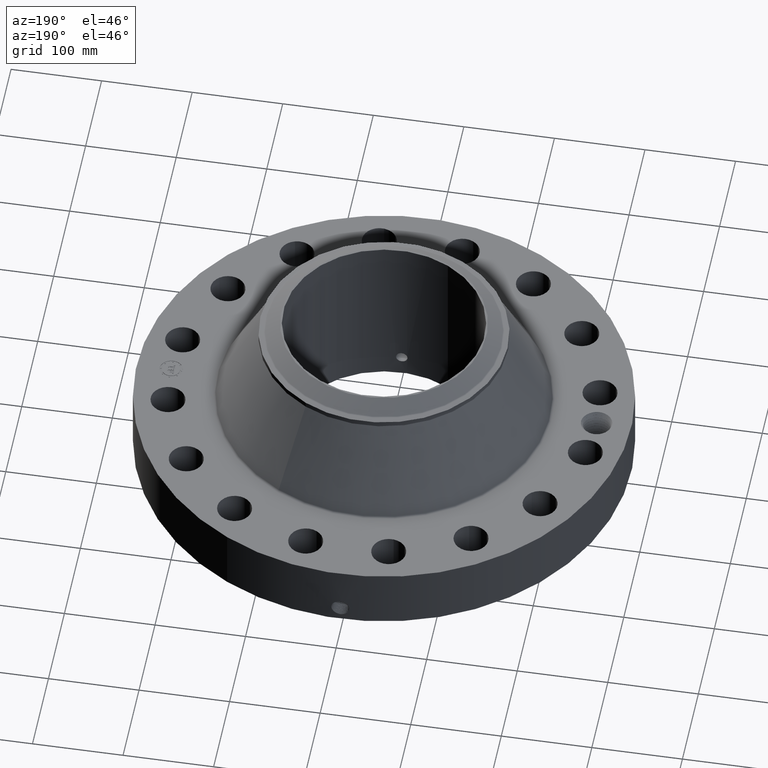
[diagram: clean part render]
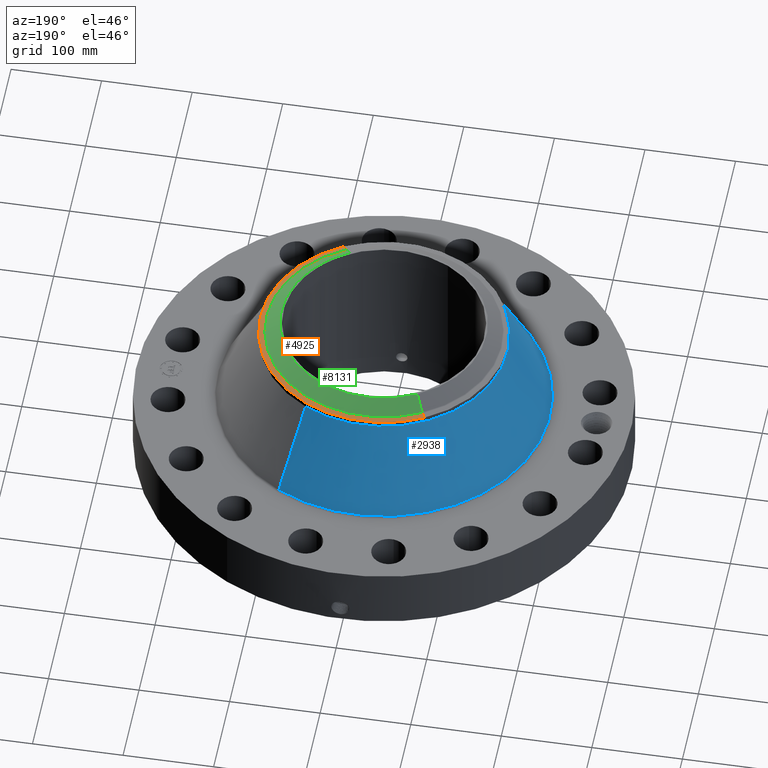
[diagram: same view with three faces highlighted in distinct colors, each labeled with its STEP entity id]
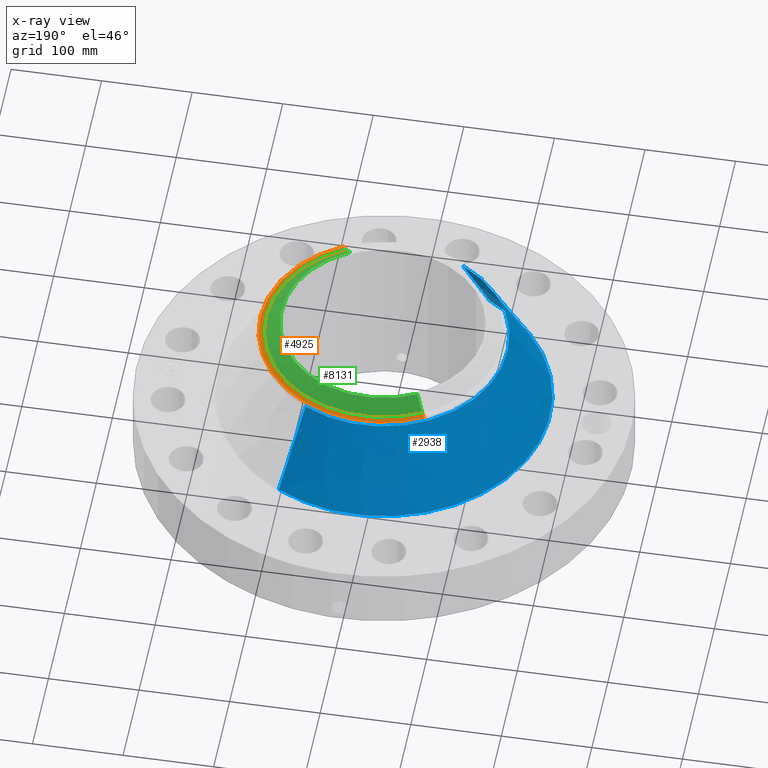
[diagram: x-ray of the same camera — body ghosted, the three highlighted faces saturated]
A machine part, auxiliary view with three faces highlighted in distinct colors.
The next image is the same camera in x-ray (body ghosted, the three faces saturated) — at least one of them is partly hidden behind the body in this view.
Their STEP definitions:

[orange] entity #4925 — the highlighted conical surface has half-angle 80 deg.
#3725=AXIS2_PLACEMENT_3D('Circle Axis2P3D',#3723,#3724,$) ;
#3752=AXIS2_PLACEMENT_3D('Circle Axis2P3D',#3750,#3751,$) ;
#4897=AXIS2_PLACEMENT_3D('Cone Axis2P3D',#4894,#4895,#4896) ;
#4908=AXIS2_PLACEMENT_3D('Circle Axis2P3D',#4906,#4907,$) ;
#3720=CARTESIAN_POINT('Vertex',(2.57691227001,4.71700627018,6.94200584758)) ;
#3723=CARTESIAN_POINT('Axis2P3D Location',(0.,0.,6.94200584758)) ;
#3727=CARTESIAN_POINT('Vertex',(2.57691227001,-4.71700627018,6.94200584758)) ;
#3747=CARTESIAN_POINT('Vertex',(-2.57691227001,4.71700627018,6.94200584758)) ;
#3750=CARTESIAN_POINT('Axis2P3D Location',(0.,0.,6.94200584758)) ;
#4894=CARTESIAN_POINT('Axis2P3D Location',(0.,0.,6.98141601925)) ;
#4899=CARTESIAN_POINT('Line Origine',(-2.52333498223,4.61893370274,6.96171093341)) ;
#4903=CARTESIAN_POINT('Vertex',(-2.46975769445,4.52086113529,6.98141601925)) ;
#4906=CARTESIAN_POINT('Axis2P3D Location',(0.,0.,6.98141601925)) ;
#4910=CARTESIAN_POINT('Vertex',(2.46975769445,-4.52086113529,6.98141601925)) ;
#4913=CARTESIAN_POINT('Line Origine',(2.52333498223,-4.61893370274,6.96171093341)) ;
#3724=DIRECTION('Axis2P3D Direction',(0.,0.,-0.0393700787402)) ;
#3751=DIRECTION('Axis2P3D Direction',(0.,0.,-0.0393700787402)) ;
#4895=DIRECTION('Axis2P3D Direction',(-0.,-0.,-0.0393700787402)) ;
#4896=DIRECTION('Axis2P3D XDirection',(0.0188750212049,-0.0345504945626,0.)) ;
#4900=DIRECTION('Vector Direction',(-0.0185882672208,0.0340255949157,-0.00683654242783)) ;
#4907=DIRECTION('Axis2P3D Direction',(0.,0.,-0.0393700787402)) ;
#4914=DIRECTION('Vector Direction',(0.0185882672208,-0.0340255949157,-0.00683654242783)) ;
#4901=VECTOR('Line Direction',#4900,0.0393700787402) ;
#4915=VECTOR('Line Direction',#4914,0.0393700787402) ;
#4919=ORIENTED_EDGE('',*,*,#4905,.F.) ;
#4920=ORIENTED_EDGE('',*,*,#4912,.F.) ;
#4921=ORIENTED_EDGE('',*,*,#4917,.T.) ;
#4922=ORIENTED_EDGE('',*,*,#3729,.T.) ;
#4923=ORIENTED_EDGE('',*,*,#3754,.F.) ;
#4925=ADVANCED_FACE('PartBody',(#4924),#4898,.T.) ;
#3726=CIRCLE('generated circle',#3725,5.37500000002) ;
#3753=CIRCLE('generated circle',#3752,5.37500000002) ;
#4909=CIRCLE('generated circle',#4908,5.15149380994) ;
#4898=CONICAL_SURFACE('Cone',#4897,5.15149380994,1.3962634016) ;
#3729=EDGE_CURVE('',#3728,#3721,#3726,.F.) ;
#3754=EDGE_CURVE('',#3748,#3721,#3753,.T.) ;
#4905=EDGE_CURVE('',#4904,#3748,#4902,.T.) ;
#4912=EDGE_CURVE('',#4911,#4904,#4909,.F.) ;
#4917=EDGE_CURVE('',#4911,#3728,#4916,.T.) ;
#4918=EDGE_LOOP('',(#4919,#4920,#4921,#4922,#4923)) ;
#4924=FACE_OUTER_BOUND('',#4918,.T.) ;
#4902=LINE('Line',#4899,#4901) ;
#4916=LINE('Line',#4913,#4915) ;
#3721=VERTEX_POINT('',#3720) ;
#3728=VERTEX_POINT('',#3727) ;
#3748=VERTEX_POINT('',#3747) ;
#4904=VERTEX_POINT('',#4903) ;
#4911=VERTEX_POINT('',#4910) ;

[blue] entity #2938 — the highlighted conical surface has half-angle 26.838 deg.
#2291=AXIS2_PLACEMENT_3D('Circle Axis2P3D',#2289,#2290,$) ;
#2899=AXIS2_PLACEMENT_3D('Cone Axis2P3D',#2896,#2897,#2898) ;
#2929=AXIS2_PLACEMENT_3D('Circle Axis2P3D',#2927,#2928,$) ;
#2267=CARTESIAN_POINT('Vertex',(3.45986804901,6.33324598245,3.06582396387)) ;
#2274=CARTESIAN_POINT('Vertex',(-3.45986804901,-6.33324598245,3.06582396387)) ;
#2289=CARTESIAN_POINT('Axis2P3D Location',(0.,0.,3.06582396387)) ;
#2896=CARTESIAN_POINT('Axis2P3D Location',(0.,0.,6.70578537514)) ;
#2901=CARTESIAN_POINT('Line Origine',(3.01839015951,5.52512612632,4.8858046695)) ;
#2905=CARTESIAN_POINT('Vertex',(2.57691227001,4.71700627018,6.70578537514)) ;
#2912=CARTESIAN_POINT('Vertex',(-2.57691227001,-4.71700627018,6.70578537514)) ;
#2915=CARTESIAN_POINT('Line Origine',(-3.01839015951,-5.52512612632,4.8858046695)) ;
#2927=CARTESIAN_POINT('Axis2P3D Location',(0.,0.,6.70578537514)) ;
#2290=DIRECTION('Axis2P3D Direction',(0.,0.,-0.0393700787402)) ;
#2897=DIRECTION('Axis2P3D Direction',(0.,0.,-0.0393700787402)) ;
#2898=DIRECTION('Axis2P3D XDirection',(-0.0188750212049,-0.0345504945626,0.)) ;
#2902=DIRECTION('Vector Direction',(0.00852144859185,0.0155984070186,-0.0351294422442)) ;
#2916=DIRECTION('Vector Direction',(-0.00852144859185,-0.0155984070186,-0.0351294422442)) ;
#2928=DIRECTION('Axis2P3D Direction',(0.,0.,-0.0393700787402)) ;
#2903=VECTOR('Line Direction',#2902,0.0393700787402) ;
#2917=VECTOR('Line Direction',#2916,0.0393700787402) ;
#2933=ORIENTED_EDGE('',*,*,#2293,.F.) ;
#2934=ORIENTED_EDGE('',*,*,#2919,.T.) ;
#2935=ORIENTED_EDGE('',*,*,#2931,.T.) ;
#2936=ORIENTED_EDGE('',*,*,#2907,.F.) ;
#2938=ADVANCED_FACE('PartBody',(#2937),#2900,.T.) ;
#2292=CIRCLE('generated circle',#2291,7.21669533726) ;
#2930=CIRCLE('generated circle',#2929,5.37500000002) ;
#2900=CONICAL_SURFACE('Cone',#2899,5.37500000002,0.468408708872) ;
#2293=EDGE_CURVE('',#2275,#2268,#2292,.T.) ;
#2907=EDGE_CURVE('',#2268,#2906,#2904,.F.) ;
#2919=EDGE_CURVE('',#2275,#2913,#2918,.F.) ;
#2931=EDGE_CURVE('',#2913,#2906,#2930,.T.) ;
#2932=EDGE_LOOP('',(#2933,#2934,#2935,#2936)) ;
#2937=FACE_OUTER_BOUND('',#2932,.T.) ;
#2904=LINE('Line',#2901,#2903) ;
#2918=LINE('Line',#2915,#2917) ;
#2268=VERTEX_POINT('',#2267) ;
#2275=VERTEX_POINT('',#2274) ;
#2906=VERTEX_POINT('',#2905) ;
#2913=VERTEX_POINT('',#2912) ;

[green] entity #8131 — the highlighted conical surface has half-angle 52.5 deg.
#4538=AXIS2_PLACEMENT_3D('Circle Axis2P3D',#4536,#4537,$) ;
#8092=AXIS2_PLACEMENT_3D('Cone Axis2P3D',#8089,#8090,#8091) ;
#8122=AXIS2_PLACEMENT_3D('Circle Axis2P3D',#8120,#8121,$) ;
#4536=CARTESIAN_POINT('Axis2P3D Location',(0.,0.,7.50000000003)) ;
#4540=CARTESIAN_POINT('Vertex',(2.13523677381,-3.90852469741,7.50000000003)) ;
#4542=CARTESIAN_POINT('Vertex',(-2.13523677381,3.90852469741,7.50000000003)) ;
#8089=CARTESIAN_POINT('Axis2P3D Location',(0.,0.,7.50000000003)) ;
#8094=CARTESIAN_POINT('Line Origine',(-2.29017807636,4.19214284931,7.25201437259)) ;
#8098=CARTESIAN_POINT('Vertex',(-2.44511937891,4.47576100122,7.00402874516)) ;
#8105=CARTESIAN_POINT('Vertex',(2.44511937891,-4.47576100122,7.00402874516)) ;
#8108=CARTESIAN_POINT('Line Origine',(2.29017807636,-4.19214284931,7.25201437259)) ;
#8120=CARTESIAN_POINT('Axis2P3D Location',(0.,0.,7.00402874516)) ;
#4537=DIRECTION('Axis2P3D Direction',(0.,0.,-0.0393700787402)) ;
#8090=DIRECTION('Axis2P3D Direction',(-0.,-0.,-0.0393700787402)) ;
#8091=DIRECTION('Axis2P3D XDirection',(-0.0188750212049,0.0345504945626,0.)) ;
#8095=DIRECTION('Vector Direction',(-0.014974561121,0.02741075027,-0.023966985394)) ;
#8109=DIRECTION('Vector Direction',(0.014974561121,-0.02741075027,-0.023966985394)) ;
#8121=DIRECTION('Axis2P3D Direction',(0.,0.,-0.0393700787402)) ;
#8096=VECTOR('Line Direction',#8095,0.0393700787402) ;
#8110=VECTOR('Line Direction',#8109,0.0393700787402) ;
#8126=ORIENTED_EDGE('',*,*,#4544,.F.) ;
#8127=ORIENTED_EDGE('',*,*,#8112,.T.) ;
#8128=ORIENTED_EDGE('',*,*,#8124,.T.) ;
#8129=ORIENTED_EDGE('',*,*,#8100,.F.) ;
#8131=ADVANCED_FACE('PartBody',(#8130),#8093,.T.) ;
#4539=CIRCLE('generated circle',#4538,4.4537401575) ;
#8123=CIRCLE('generated circle',#8122,5.10010248105) ;
#8093=CONICAL_SURFACE('Cone',#8092,4.4537401575,0.916297857297) ;
#4544=EDGE_CURVE('',#4541,#4543,#4539,.F.) ;
#8100=EDGE_CURVE('',#4543,#8099,#8097,.T.) ;
#8112=EDGE_CURVE('',#4541,#8106,#8111,.T.) ;
#8124=EDGE_CURVE('',#8106,#8099,#8123,.F.) ;
#8125=EDGE_LOOP('',(#8126,#8127,#8128,#8129)) ;
#8130=FACE_OUTER_BOUND('',#8125,.T.) ;
#8097=LINE('Line',#8094,#8096) ;
#8111=LINE('Line',#8108,#8110) ;
#4541=VERTEX_POINT('',#4540) ;
#4543=VERTEX_POINT('',#4542) ;
#8099=VERTEX_POINT('',#8098) ;
#8106=VERTEX_POINT('',#8105) ;